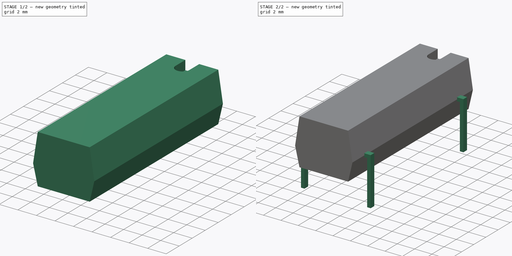
[diagram: build sequence overview — one tinted view per stage of 2, left to right]
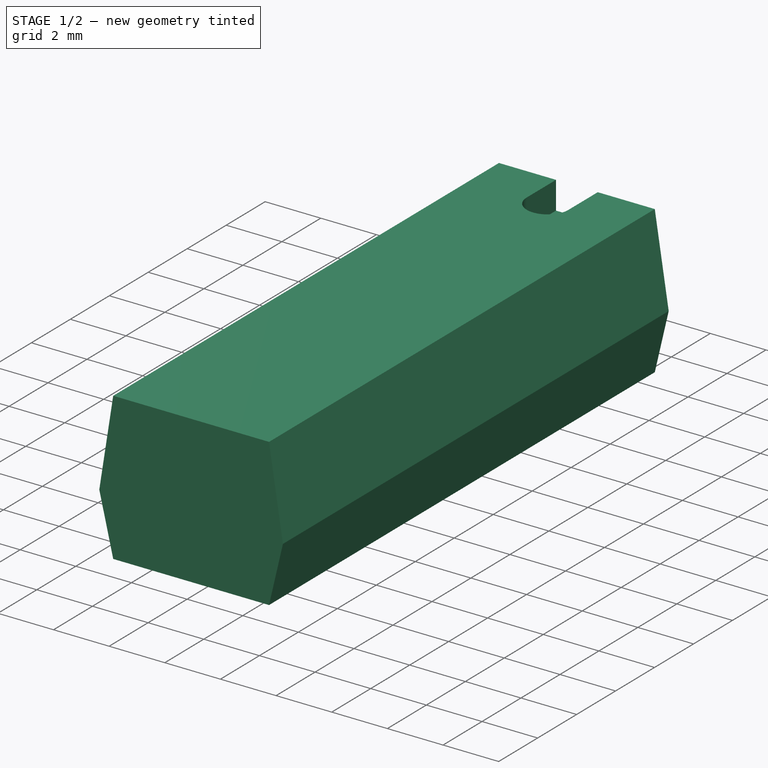
[diagram: stage 1 of 2 — iso view after this stage's code; geometry added in this stage tinted green]
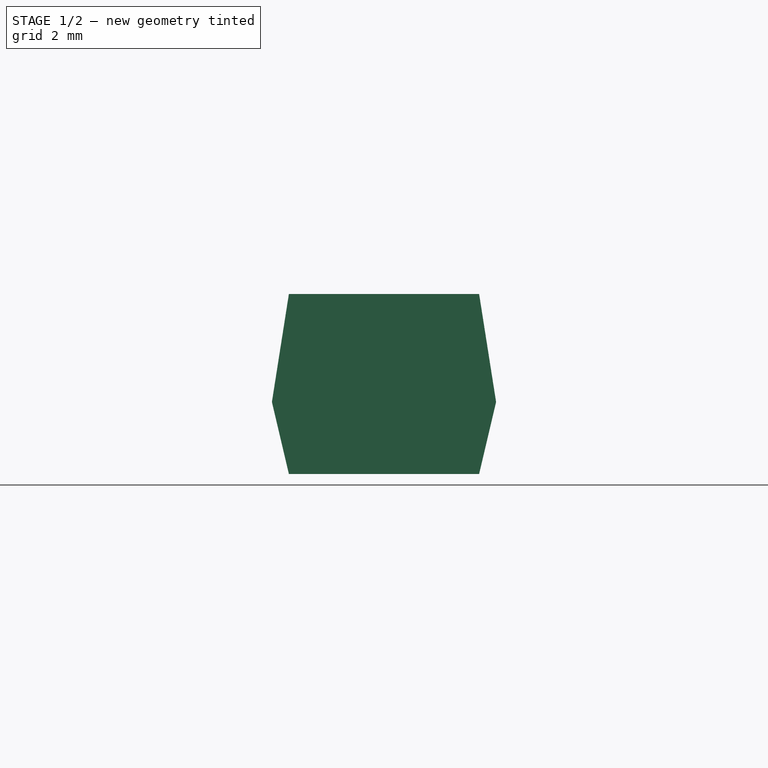
[diagram: stage 1 of 2 — front view after this stage's code; geometry added in this stage tinted green]
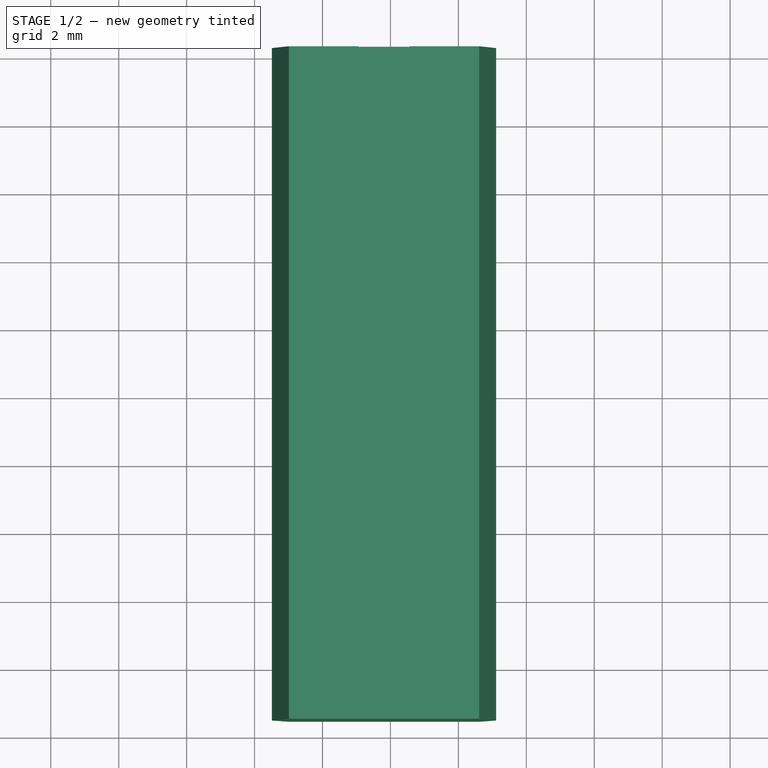
[diagram: stage 1 of 2 — top view after this stage's code; geometry added in this stage tinted green]
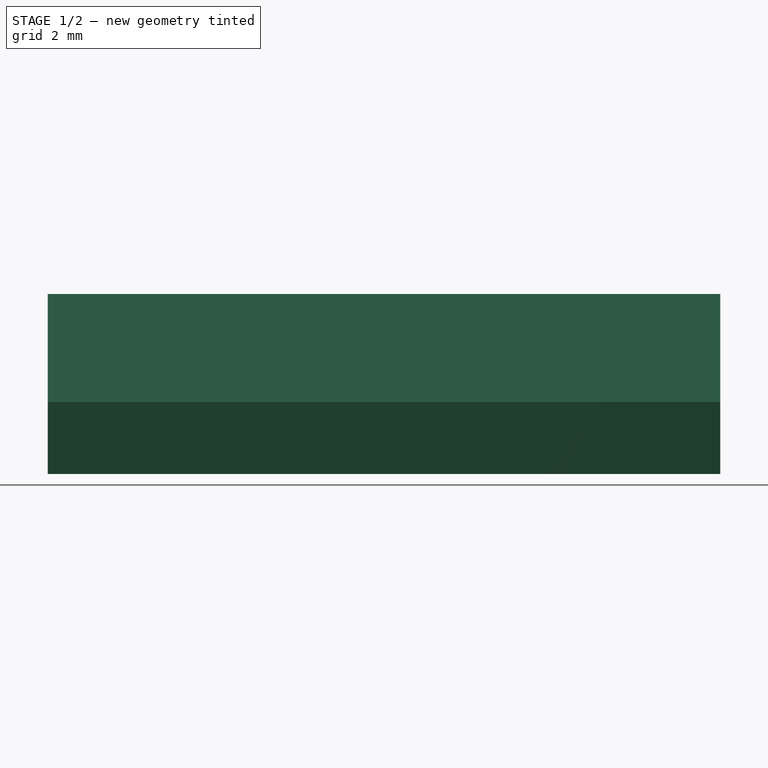
[diagram: stage 1 of 2 — right view after this stage's code; geometry added in this stage tinted green]
FCSTD DOCUMENT  (FreeCAD 0.16R6703 (Git))
Label: Oscillator_SeikoEpson_SG-8002DB
License: All rights reserved
LicenseURL: http://en.wikipedia.org/wiki/All_rights_reserved
objects: Sketcher::SketchObject×4, PartDesign::Pad×3, Spreadsheet::Sheet×1, PartDesign::Pocket×1
note: 12 computed .brp shape members not serialized (recipe doc carries the construction recipe); baked Part::Feature solids carry a one-line shape summary decoded from their .brp

FEATURE [Spreadsheet::Sheet] Spreadsheet
  cells = A1=px; B1(px)=15.24; A2=py; B2(py)=7.62; A3=wx; B3(wx)=19.8; A4=wy; B4(wy)=6.6; A5=wz; B5(wz)=5.3
FEATURE [Sketcher::SketchObject] Sketch
  Placement = pos=(0,-7.62,0) rot=(-1,0,0;4.71239rad)
  expr: Placement.Base.y = -Spreadsheet.px / 2
  expr: Constraints[17] = Spreadsheet.wz * 0.6
  expr: Constraints[15] = (Spreadsheet.py - Spreadsheet.wy) / 2
  expr: Constraints[14] = Spreadsheet.wy - 1
  expr: Constraints[13] = 0.5
  expr: Constraints[10] = Spreadsheet.wy
  expr: Constraints[8] = Spreadsheet.wz
  sketch-geometry (6):
    g0: LineSegment StartX=1.01 StartY=0.2 StartZ=0 EndX=6.61 EndY=0.2 EndZ=0
    g1: LineSegment StartX=1.01 StartY=0.2 StartZ=0 EndX=0.51 EndY=2.32 EndZ=0
    g2: LineSegment StartX=0.51 StartY=2.32 StartZ=0 EndX=1.01 EndY=5.5 EndZ=0
    g3: LineSegment StartX=1.01 StartY=5.5 StartZ=0 EndX=6.61 EndY=5.5 EndZ=0
    g4: LineSegment StartX=6.61 StartY=5.5 StartZ=0 EndX=7.11 EndY=2.32 EndZ=0
    g5: LineSegment StartX=7.11 StartY=2.32 StartZ=0 EndX=6.61 EndY=0.2 EndZ=0
  constraints (18):
    c: Horizontal(g0)
    c: Coincident(g1,g0)
    c: Coincident(g2,g1)
    c: Coincident(g3,g2)
    c: Horizontal(g3)
    c: Coincident(g5,g4)
    c: Coincident(g5,g0)
    c: DistanceY(g1,g4) = 0
    c: DistanceY(g0,g4) = 5.3
    c: Coincident(g4,g3)
    c: DistanceX(g1,g4) = 6.6
    c: DistanceX(g3,g0) = 0
    c: DistanceX(g0,g2) = 0
    c: DistanceX(g1,g0) = 0.5
    c: DistanceX(g0,g0) = 5.6
    c: DistanceX(g-1,g1) = 0.51
    c: DistanceY(g-1,g0) = 0.2
    c: DistanceY(g4,g3) = 3.18
FEATURE [PartDesign::Pad] Pad
  Length = 19.8
  Length2 = 100
  Midplane = true
  Placement = pos=(0,-7.62,0) rot=(-1,0,0;4.71239rad)
  Sketch = -> Sketch
  Type = 0
  expr: Length = Spreadsheet.wx
FEATURE [Sketcher::SketchObject] Sketch003
  ExternalGeometry = -> [Pad]
  Placement = pos=(0,-7.62,5.5) rot=(0,0,1;3.14159rad)
  Support = -> Pad [Face4]
  sketch-geometry (5):
    g0: ArcOfCircle CenterX=-3.81 CenterY=-8.4 CenterZ=0 NormalX=0 NormalY=0 NormalZ=1 Radius=0.75 StartAngle=0 EndAngle=3.14159
    g1: LineSegment [constr] StartX=-6.61 StartY=-8.4 StartZ=0 EndX=-1.01 EndY=-8.4 EndZ=0
    g2: LineSegment StartX=-4.56 StartY=-8.4 StartZ=0 EndX=-4.56 EndY=-9.9 EndZ=0
    g3: LineSegment StartX=-4.56 StartY=-9.9 StartZ=0 EndX=-3.06 EndY=-9.9 EndZ=0
    g4: LineSegment StartX=-3.06 StartY=-9.9 StartZ=0 EndX=-3.06 EndY=-8.4 EndZ=0
  constraints (16):
    c: DistanceY(g0,g0) = 0
    c: DistanceY(g0,g0) = 0
    c: DistanceX(g0,g0) = 1.5
    c: Horizontal(g1)
    c: Equal(g1,g-3)
    c: DistanceX(g1,g-3) = 0
    c: Symmetric(g1,g1,g0)
    c: Coincident(g2,g0)
    c: Vertical(g2)
    c: Coincident(g3,g2)
    c: PointOnObject(g3,g-3)
    c: Horizontal(g3)
    c: Coincident(g4,g3)
    c: Coincident(g4,g0)
    c: Vertical(g4)
    c: DistanceY(g3,g0) = 1.5
FEATURE [PartDesign::Pocket] Pocket
  Length = 1
  Placement = pos=(0,-7.62,0) rot=(-1,0,0;4.71239rad)
  Sketch = -> Sketch003
  Type = 0
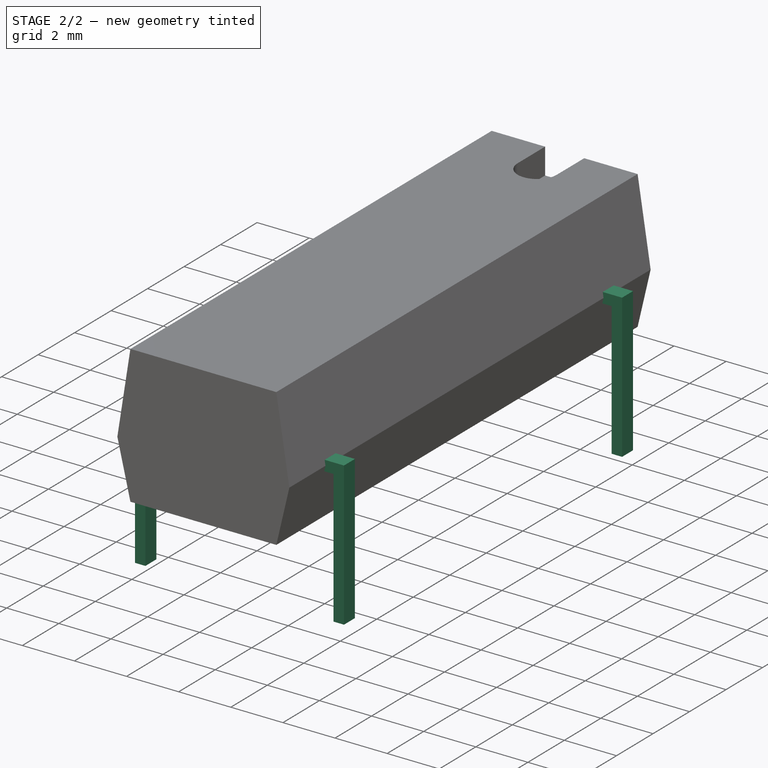
[diagram: stage 2 of 2 — iso view after this stage's code; geometry added in this stage tinted green]
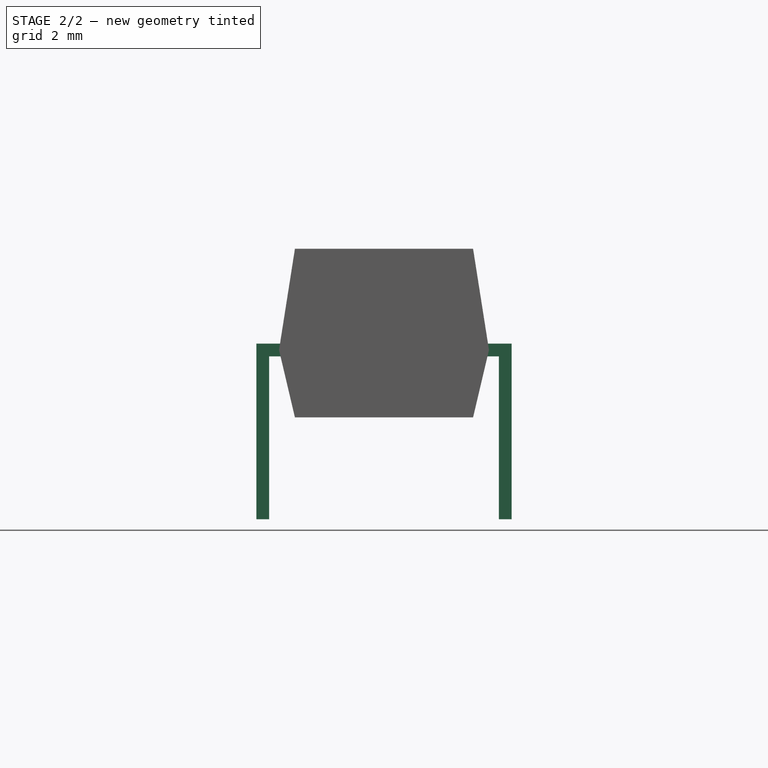
[diagram: stage 2 of 2 — front view after this stage's code; geometry added in this stage tinted green]
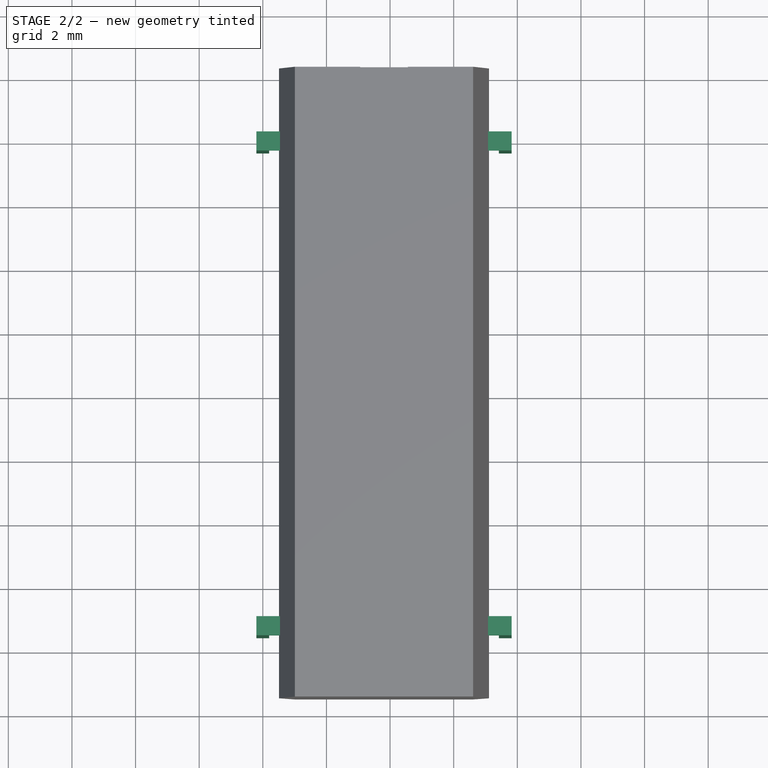
[diagram: stage 2 of 2 — top view after this stage's code; geometry added in this stage tinted green]
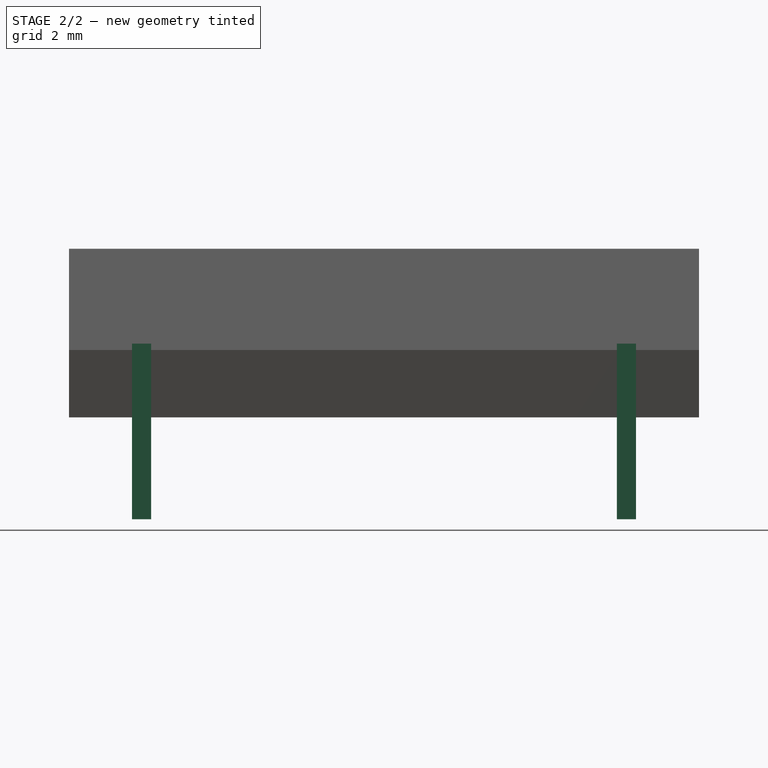
[diagram: stage 2 of 2 — right view after this stage's code; geometry added in this stage tinted green]
FEATURE [Sketcher::SketchObject] Sketch001
  Placement = pos=(0,0,0) rot=(-1,0,0;4.71239rad)
  expr: Constraints[22] = Spreadsheet.py + 0.4
  expr: Constraints[8] = Spreadsheet.wz * 0.4 + 0.2 + 0.2
  sketch-geometry (8):
    g0: LineSegment StartX=-0.2 StartY=-3 StartZ=0 EndX=0.2 EndY=-3 EndZ=0
    g1: LineSegment StartX=7.82 StartY=2.52 StartZ=0 EndX=-0.2 EndY=2.52 EndZ=0
    g2: LineSegment StartX=-0.2 StartY=2.52 StartZ=0 EndX=-0.2 EndY=-3 EndZ=0
    g3: LineSegment StartX=7.82 StartY=2.52 StartZ=0 EndX=7.82 EndY=-3 EndZ=0
    g4: LineSegment StartX=7.82 StartY=-3 StartZ=0 EndX=7.42 EndY=-3 EndZ=0
    g5: LineSegment StartX=7.42 StartY=-3 StartZ=0 EndX=7.42 EndY=2.12 EndZ=0
    g6: LineSegment StartX=7.42 StartY=2.12 StartZ=0 EndX=0.2 EndY=2.12 EndZ=0
    g7: LineSegment StartX=0.2 StartY=2.12 StartZ=0 EndX=0.2 EndY=-3 EndZ=0
  constraints (24):
    c: Coincident(g1,g2)
    c: Coincident(g2,g0)
    c: Horizontal(g0)
    c: Horizontal(g1)
    c: Vertical(g2)
    c: DistanceX(g0,g-1) = 0.2
    c: DistanceX(g0,g0) = 0.4
    c: DistanceY(g0,g-1) = 3
    c: DistanceY(g-1,g1) = 2.52
    c: Coincident(g3,g1)
    c: Vertical(g3)
    c: Coincident(g4,g3)
    c: Horizontal(g4)
    c: Coincident(g5,g4)
    c: Vertical(g5)
    c: Coincident(g6,g5)
    c: Horizontal(g6)
    c: Coincident(g7,g6)
    c: Coincident(g7,g0)
    c: Vertical(g7)
    c: DistanceX(g4,g4) = 0.4
    c: DistanceY(g5,g1) = 0.4
    c: DistanceX(g1,g1) = 8.02
    c: DistanceY(g4,g0) = 0
FEATURE [PartDesign::Pad] Pad001
  Length = 0.6
  Length2 = 100
  Midplane = true
  Placement = pos=(0,0,0) rot=(-1,0,0;4.71239rad)
  Sketch = -> Sketch001
  Type = 0
FEATURE [Sketcher::SketchObject] Sketch002
  Placement = pos=(0,-15.24,0) rot=(1,0,0;1.5708rad)
  expr: Placement.Base.y = -Spreadsheet.px
  expr: Constraints[22] = Spreadsheet.py + 0.4
  expr: Constraints[8] = Spreadsheet.wz * 0.4 + 0.2 + 0.2
  sketch-geometry (8):
    g0: LineSegment StartX=-0.2 StartY=-3 StartZ=0 EndX=0.2 EndY=-3 EndZ=0
    g1: LineSegment StartX=7.82 StartY=2.52 StartZ=0 EndX=-0.2 EndY=2.52 EndZ=0
    g2: LineSegment StartX=-0.2 StartY=2.52 StartZ=0 EndX=-0.2 EndY=-3 EndZ=0
    g3: LineSegment StartX=7.82 StartY=2.52 StartZ=0 EndX=7.82 EndY=-3 EndZ=0
    g4: LineSegment StartX=7.82 StartY=-3 StartZ=0 EndX=7.42 EndY=-3 EndZ=0
    g5: LineSegment StartX=7.42 StartY=-3 StartZ=0 EndX=7.42 EndY=2.12 EndZ=0
    g6: LineSegment StartX=7.42 StartY=2.12 StartZ=0 EndX=0.2 EndY=2.12 EndZ=0
    g7: LineSegment StartX=0.2 StartY=2.12 StartZ=0 EndX=0.2 EndY=-3 EndZ=0
  constraints (24):
    c: Coincident(g1,g2)
    c: Coincident(g2,g0)
    c: Horizontal(g0)
    c: Horizontal(g1)
    c: Vertical(g2)
    c: DistanceX(g0,g-1) = 0.2
    c: DistanceX(g0,g0) = 0.4
    c: DistanceY(g0,g-1) = 3
    c: DistanceY(g-1,g1) = 2.52
    c: Coincident(g3,g1)
    c: Vertical(g3)
    c: Coincident(g4,g3)
    c: Horizontal(g4)
    c: Coincident(g5,g4)
    c: Vertical(g5)
    c: Coincident(g6,g5)
    c: Horizontal(g6)
    c: Coincident(g7,g6)
    c: Coincident(g7,g0)
    c: Vertical(g7)
    c: DistanceX(g4,g4) = 0.4
    c: DistanceY(g5,g1) = 0.4
    c: DistanceX(g1,g1) = 8.02
    c: DistanceY(g4,g0) = 0
FEATURE [PartDesign::Pad] Pad002
  Length = 0.6
  Length2 = 100
  Midplane = true
  Placement = pos=(0,-15.24,0) rot=(1,0,0;1.5708rad)
  Sketch = -> Sketch002
  Type = 0
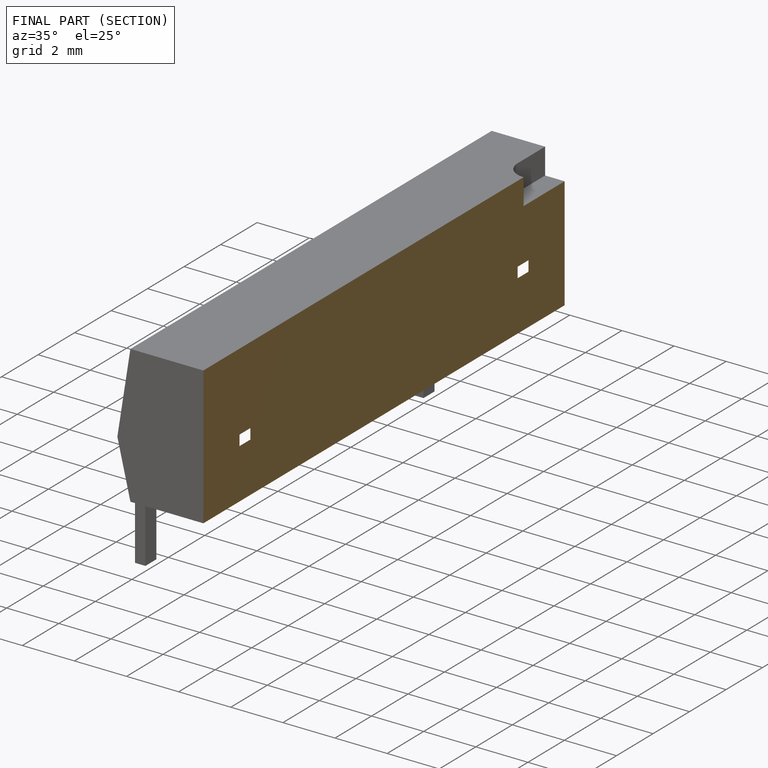
[diagram: finished part — half-section view (interior)]
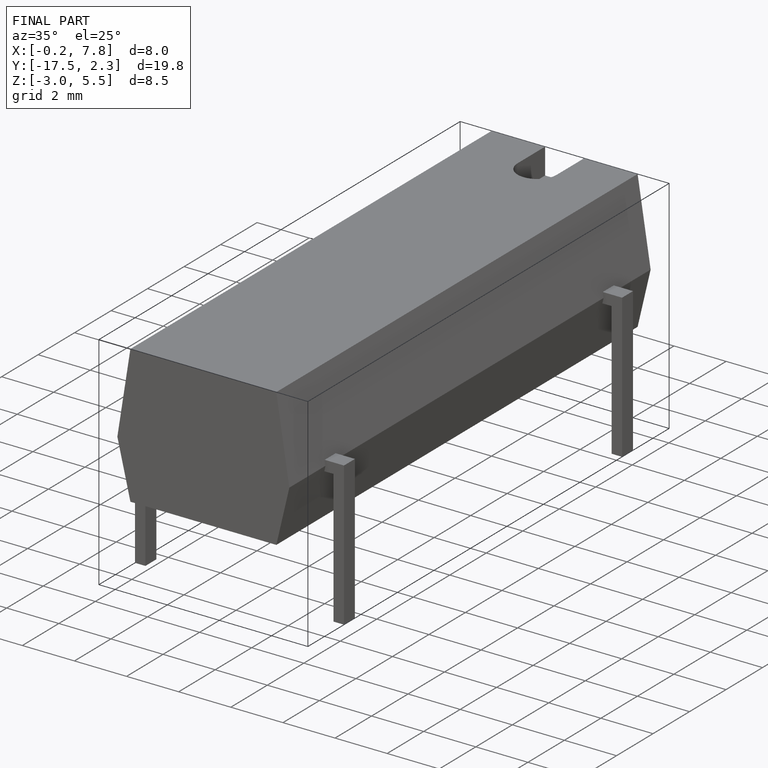
[diagram: finished part — iso view with bounding-box wireframe]
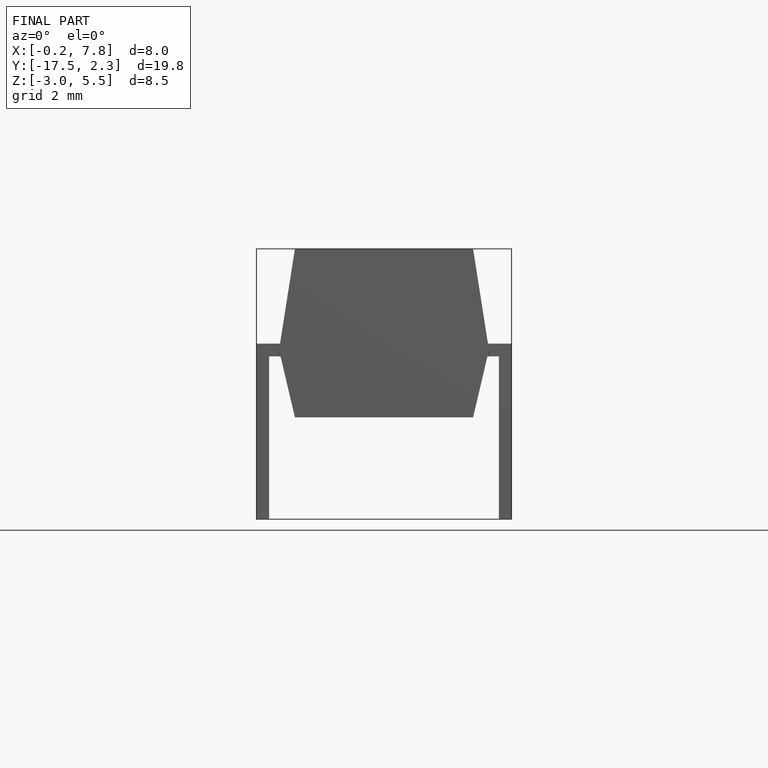
[diagram: finished part — front view with bounding-box wireframe]
